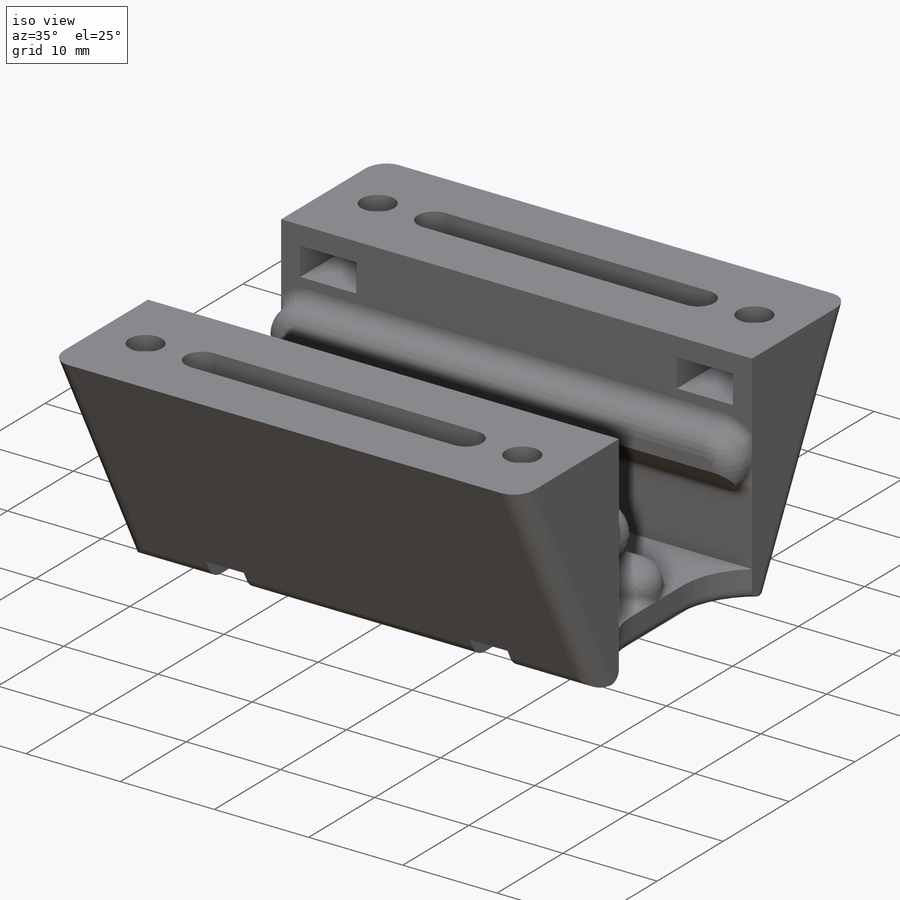
[diagram: iso view]
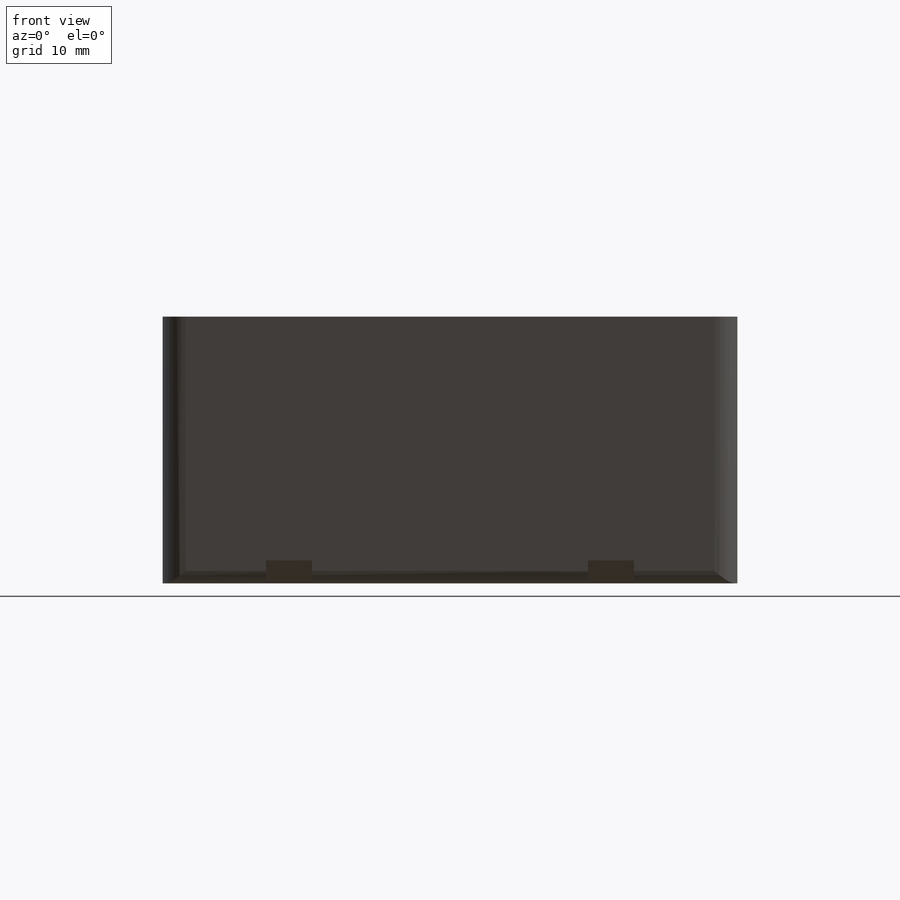
[diagram: front view]
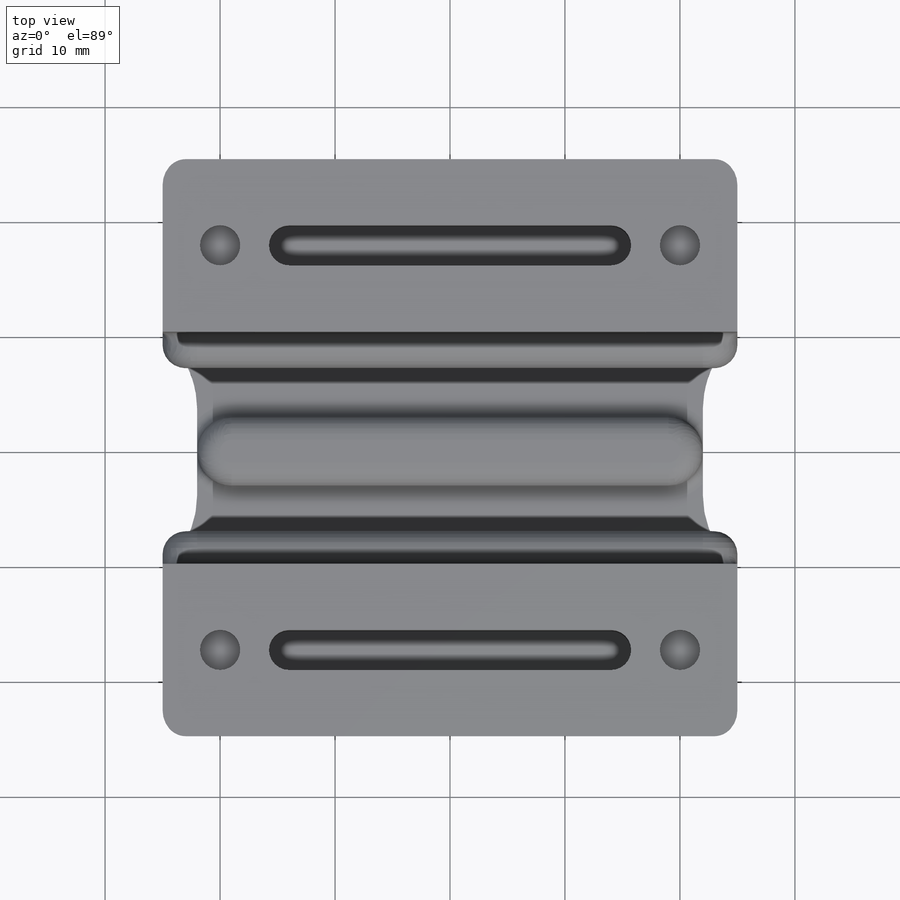
[diagram: top view]
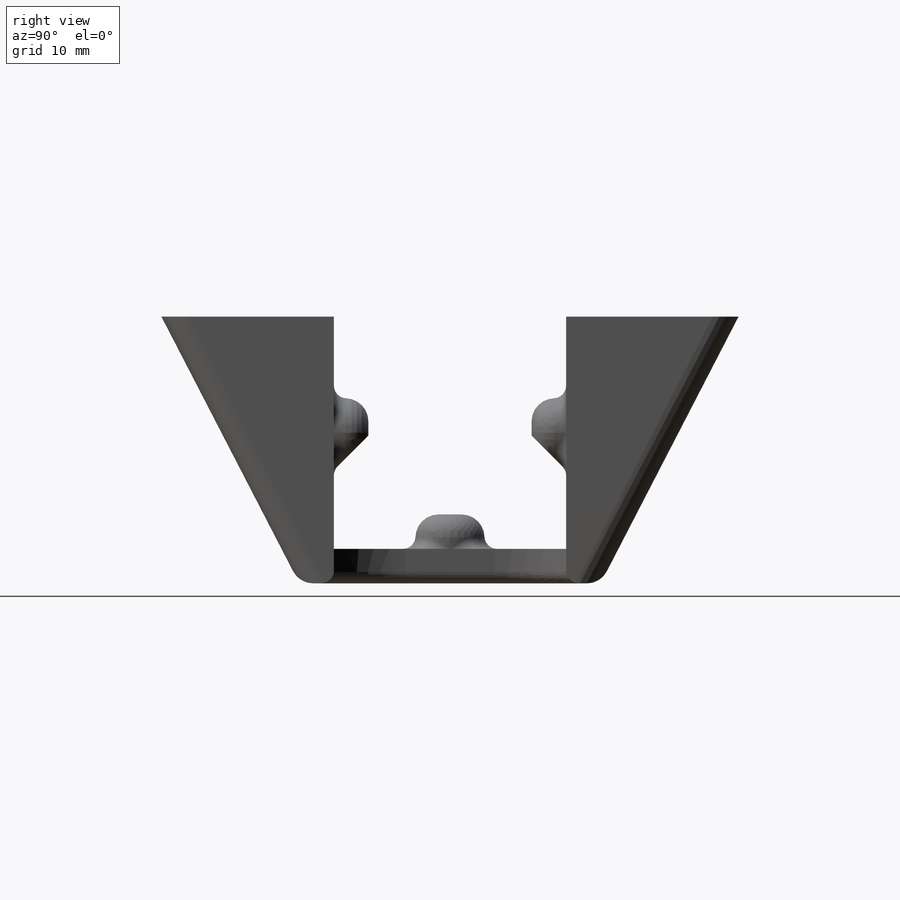
[diagram: right view]
SOLIDWORKS PART (.sldprt)
format: sldprt  version: not decoded by parser v0  size: 818,176 bytes
history: native  units: mm
features: sketch x13, extrude x8, fillet x6, cut_extrude x4, plane x2, material x1 (+13 scaffold rows collapsed)
feature tree (47):
  scaffold x13  (default folders/planes/origin — collapsed)
  material  "Material <not specified>"
  sketch  "Sketch2"  dims[D1=20.2mm D2=3.0mm D3=50.0mm D4=3.0mm]
  extrude  "Boss-Extrude1"  Depth=3mm
  sketch  "Sketch3"  dims[D1=6.0mm]
  extrude  "Boss-Extrude2"  Depth=3mm
  sketch  "Sketch4"
  extrude  "Boss-Extrude3"  Depth=20.2mm
  sketch  "Sketch5"  dims[D1=6.0mm]
  extrude  "Boss-Extrude4"  Depth=3mm
  sketch  "Sketch6"  dims[D1=6.0mm]
  extrude  "Boss-Extrude5"  Depth=3mm
  sketch  "Sketch7"  dims[D1=15.0mm D2=20.0mm]
  extrude  "Boss-Extrude6"  [1 undecoded]
  sketch  "Sketch17"  dims[c1.D1=9.0mm c1.D2=4.0mm c1.D3=5.0mm c2.D1=9.0mm c2.D2=4.0mm c2.D3=3.0mm]
  cut_extrude  "Cut-Extrude7"  Depth=2mm
  sketch  "Sketch19"
  extrude  "Boss-Extrude9"  [1 undecoded]
  plane  "Plane2"
  sketch  "Sketch-assembly"
  fillet  "Fillet1"  Radius=8mm
  fillet  "Fillet3"  Radius=2mm
  sketch  "Sketch8"  dims[c1.D2=3.5mm c1.D3=1.75mm c1.D1=20.0mm c2.D3=6.0mm]
  cut_extrude  "Cut-Extrude1"  Depth=6mm
  fillet  "Fillet7"  Radius=3mm
  fillet  "Fillet4"  Radius=2mm
  sketch  "Sketch13"  dims[c1.D1=0.25mm c1.D2=~3.976887mm c2.D2=45.0deg]
  cut_extrude  "Cut-Extrude4"  [1 undecoded]
  plane  "Plane1"  Offset=2mm
  sketch  "Sketch15"  dims[c1.D2=3.5mm c1.D4=5.45mm c1.D1=5.5mm c2.D2=3.5mm c2.D1=5.6mm c3.D2=4.0mm c3.D1=5.75mm c4.D2=5.5mm c5.D2=90.0deg c6.D2=4.0mm c6.D3=5.45mm c7.D2=0.5mm c7.D1=0.5mm c7.D4=~3.146559mm]
  cut_extrude  "Cut-Extrude6"  Depth=3mm
  sketch  "Sketch16"
  extrude  "Boss-Extrude8"  Depth=0.5mm
  fillet  "Fillet5"  Radius=1.1mm
  fillet  "Fillet6"  Radius=1mm
decode coverage: 24 of 31 modeling features carry decoded parameters
note: ~ marks probable driven/reference dimensions
note: 3 parameter values undecoded
summary: no parameter record found for 3 features
note: suppression state not decoded; provenance and decode notes live in map.json
